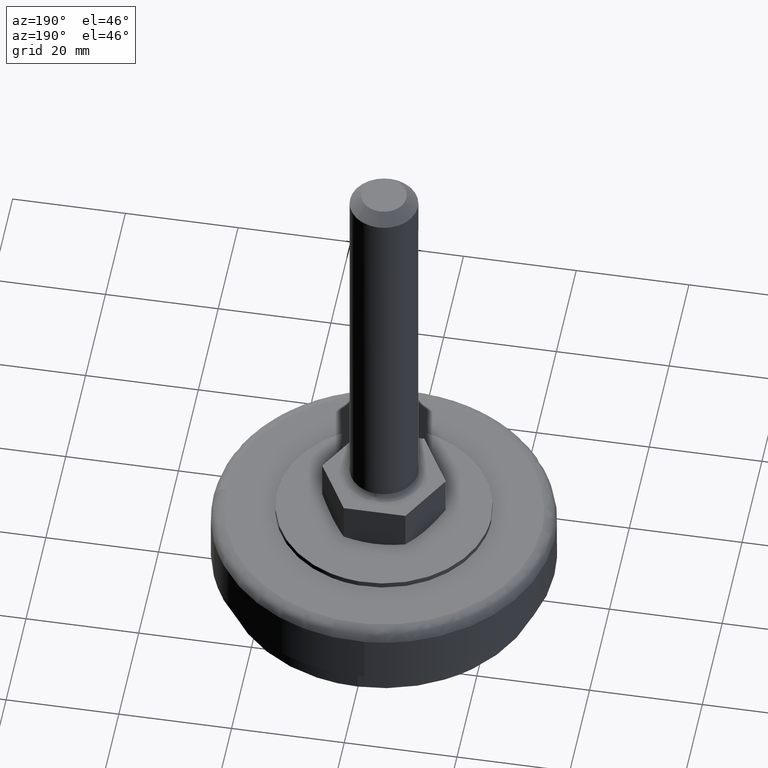
[diagram: clean part render]
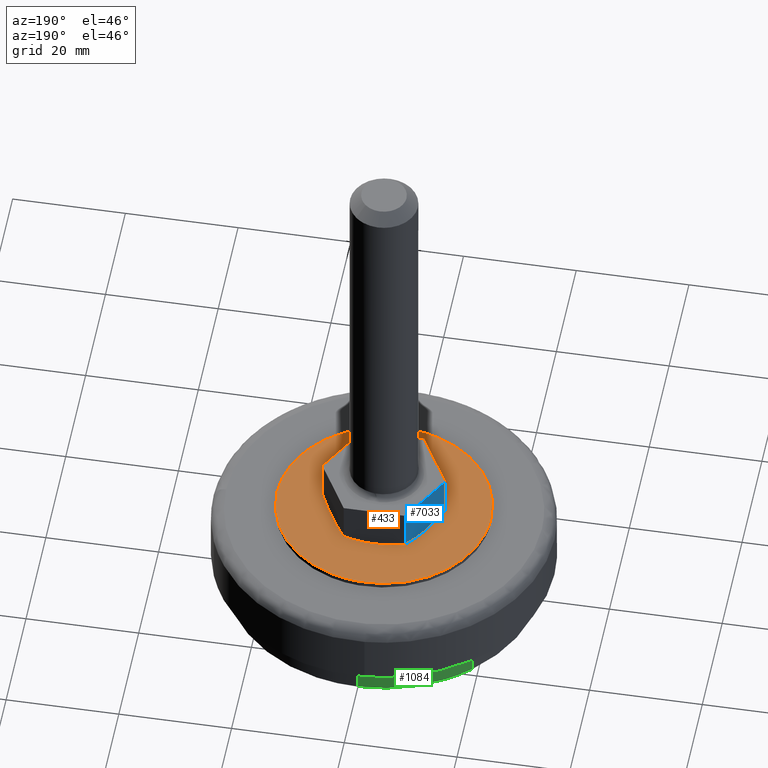
[diagram: same view with three faces highlighted in distinct colors, each labeled with its STEP entity id]
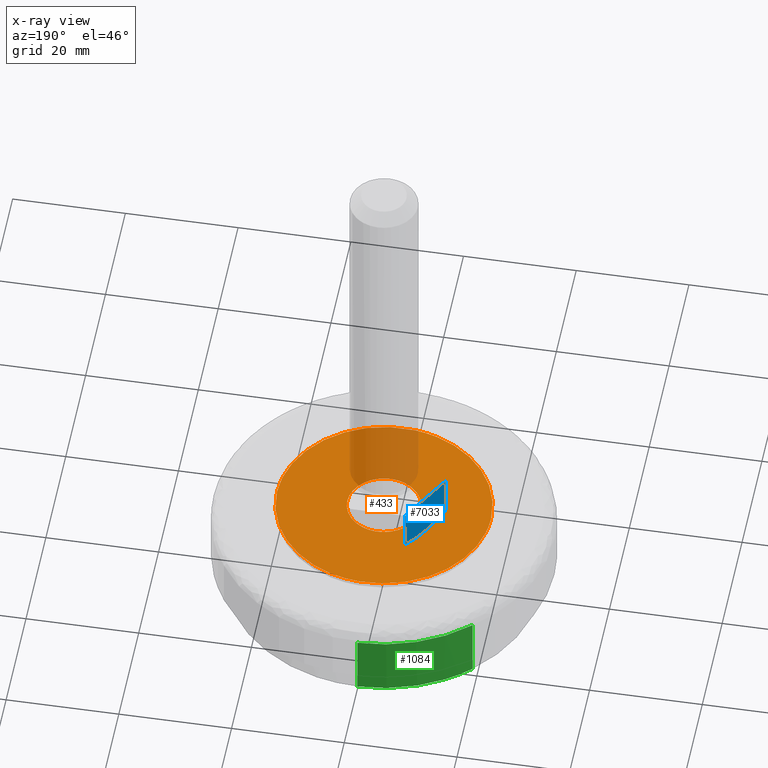
[diagram: x-ray of the same camera — body ghosted, the three highlighted faces saturated]
A machine part, auxiliary view with three faces highlighted in distinct colors.
The next image is the same camera in x-ray (body ghosted, the three faces saturated) — at least one of them is partly hidden behind the body in this view.
Their STEP definitions:

[orange] entity #433 — the highlighted face is a freeform B-spline surface patch.
#66=CARTESIAN_POINT('',(-2.242630320346628,-18.867183394610091,17.000000000002419));
#67=VERTEX_POINT('',#66);
#68=CARTESIAN_POINT('',(19.0,0.0,17.0));
#69=VERTEX_POINT('',#68);
#70=CARTESIAN_POINT('',(-2.242630320346628,-18.867183394610080,17.000000000002412));
#71=CARTESIAN_POINT('',(-1.125248097873134,-18.999999999999996,17.0));
#72=CARTESIAN_POINT('',(0.0,-19.0,17.0));
#73=CARTESIAN_POINT('',(18.999999999999993,-18.999999999999993,17.000000000000004));
#74=CARTESIAN_POINT('',(19.0,0.0,17.0));
#82=(BOUNDED_CURVE()B_SPLINE_CURVE(2,(#70,#71,#72,#73,#74),.UNSPECIFIED.,.F.,.U.)B_SPLINE_CURVE_WITH_KNOTS((3,2,3),(0.229562653903479,0.250000000000000,0.500000000000000),.UNSPECIFIED.)CURVE()GEOMETRIC_REPRESENTATION_ITEM()RATIONAL_B_SPLINE_CURVE((0.956027107755728,0.976056159671141,1.0,0.707106781186548,1.0))REPRESENTATION_ITEM(''));
#83=EDGE_CURVE('',#67,#69,#82,.T.);
#124=CARTESIAN_POINT('',(1.159897889885760,18.964562659983560,17.000000000002451));
#125=VERTEX_POINT('',#124);
#131=CARTESIAN_POINT('',(19.0,0.0,17.0));
#132=CARTESIAN_POINT('',(19.000000000000004,17.873438273749603,16.999999999999996));
#133=CARTESIAN_POINT('',(1.159897889885760,18.964562659983567,17.000000000002444));
#141=(BOUNDED_CURVE()B_SPLINE_CURVE(2,(#131,#132,#133),.UNSPECIFIED.,.F.,.U.)B_SPLINE_CURVE_WITH_KNOTS((3,3),(0.500000000000000,0.739333183890163),.UNSPECIFIED.)CURVE()GEOMETRIC_REPRESENTATION_ITEM()RATIONAL_B_SPLINE_CURVE((1.0,0.719603733606152,0.976072516707937))REPRESENTATION_ITEM(''));
#142=EDGE_CURVE('',#69,#125,#141,.T.);
#165=CARTESIAN_POINT('',(-19.0,0.0,17.0));
#166=VERTEX_POINT('',#165);
#167=CARTESIAN_POINT('',(-19.0,0.0,17.0));
#168=CARTESIAN_POINT('',(-19.0,-16.875334131970384,17.000000000000004));
#169=CARTESIAN_POINT('',(-2.242630320346628,-18.867183394610080,17.000000000002412));
#177=(BOUNDED_CURVE()B_SPLINE_CURVE(2,(#167,#168,#169),.UNSPECIFIED.,.F.,.U.)B_SPLINE_CURVE_WITH_KNOTS((3,3),(0.0,0.229562653903479),.UNSPECIFIED.)CURVE()GEOMETRIC_REPRESENTATION_ITEM()RATIONAL_B_SPLINE_CURVE((1.0,0.731050621515406,0.956027107755728))REPRESENTATION_ITEM(''));
#178=EDGE_CURVE('',#166,#67,#177,.T.);
#180=CARTESIAN_POINT('',(1.159897889885760,18.964562659983567,17.000000000002444));
#181=CARTESIAN_POINT('',(0.580490287882800,19.000000000000004,17.000000000000004));
#182=CARTESIAN_POINT('',(0.0,19.0,17.0));
#183=CARTESIAN_POINT('',(-18.999999999999993,18.999999999999993,17.000000000000004));
#184=CARTESIAN_POINT('',(-19.0,0.0,17.0));
#192=(BOUNDED_CURVE()B_SPLINE_CURVE(2,(#180,#181,#182,#183,#184),.UNSPECIFIED.,.F.,.U.)B_SPLINE_CURVE_WITH_KNOTS((3,2,3),(0.739333183890163,0.750000000000000,1.0),.UNSPECIFIED.)CURVE()GEOMETRIC_REPRESENTATION_ITEM()RATIONAL_B_SPLINE_CURVE((0.976072516707937,0.987503047580395,1.0,0.707106781186548,1.0))REPRESENTATION_ITEM(''));
#193=EDGE_CURVE('',#125,#166,#192,.T.);
#252=CARTESIAN_POINT('',(-0.767222525357073,-6.454561921353355,17.0));
#253=VERTEX_POINT('',#252);
#254=CARTESIAN_POINT('',(6.500000000000000,0.0,17.0));
#255=VERTEX_POINT('',#254);
#256=CARTESIAN_POINT('',(-0.767222525357073,-6.454561921353355,17.000000000000004));
#257=CARTESIAN_POINT('',(-0.384956777826491,-6.500000000000000,17.000000000000004));
#258=CARTESIAN_POINT('',(0.0,-6.500000000000000,17.0));
#259=CARTESIAN_POINT('',(6.500000000000000,-6.500000000000000,17.000000000000007));
#260=CARTESIAN_POINT('',(6.500000000000000,0.0,17.0));
#268=(BOUNDED_CURVE()B_SPLINE_CURVE(2,(#256,#257,#258,#259,#260),.UNSPECIFIED.,.F.,.U.)B_SPLINE_CURVE_WITH_KNOTS((3,2,3),(0.229562473511028,0.250000000000000,0.500000000000000),.UNSPECIFIED.)CURVE()GEOMETRIC_REPRESENTATION_ITEM()RATIONAL_B_SPLINE_CURVE((0.956026754178839,0.976055948328240,1.0,0.707106781186547,1.0))REPRESENTATION_ITEM(''));
#269=EDGE_CURVE('',#253,#255,#268,.T.);
#271=CARTESIAN_POINT('',(0.396815507118378,6.487876189733461,17.0));
#272=VERTEX_POINT('',#271);
#273=CARTESIAN_POINT('',(6.500000000000000,0.0,17.0));
#274=CARTESIAN_POINT('',(6.500000000000000,6.114589434619255,16.999999999999993));
#275=CARTESIAN_POINT('',(0.396815507118378,6.487876189733462,17.000000000000004));
#283=(BOUNDED_CURVE()B_SPLINE_CURVE(2,(#273,#274,#275),.UNSPECIFIED.,.F.,.U.)B_SPLINE_CURVE_WITH_KNOTS((3,3),(0.500000000000000,0.739332962234426),.UNSPECIFIED.)CURVE()GEOMETRIC_REPRESENTATION_ITEM()RATIONAL_B_SPLINE_CURVE((1.0,0.719603993292001,0.976072041657038))REPRESENTATION_ITEM(''));
#284=EDGE_CURVE('',#255,#272,#283,.T.);
#351=CARTESIAN_POINT('',(-6.500000000000000,0.0,17.0));
#352=VERTEX_POINT('',#351);
#353=CARTESIAN_POINT('',(-6.500000000000000,0.0,17.0));
#354=CARTESIAN_POINT('',(-6.500000000000000,-5.773134418525107,17.0));
#355=CARTESIAN_POINT('',(-0.767222525357073,-6.454561921353355,17.0));
#363=(BOUNDED_CURVE()B_SPLINE_CURVE(2,(#353,#354,#355),.UNSPECIFIED.,.F.,.U.)B_SPLINE_CURVE_WITH_KNOTS((3,3),(0.0,0.229562473511028),.UNSPECIFIED.)CURVE()GEOMETRIC_REPRESENTATION_ITEM()RATIONAL_B_SPLINE_CURVE((1.0,0.731050832858308,0.956026754178839))REPRESENTATION_ITEM(''));
#364=EDGE_CURVE('',#352,#253,#363,.T.);
#398=CARTESIAN_POINT('',(0.396815507118378,6.487876189733461,17.0));
#399=CARTESIAN_POINT('',(0.198592961583033,6.500000000000001,16.999999999999996));
#400=CARTESIAN_POINT('',(0.0,6.500000000000000,17.0));
#401=CARTESIAN_POINT('',(-6.500000000000000,6.500000000000000,17.000000000000007));
#402=CARTESIAN_POINT('',(-6.500000000000000,0.0,17.0));
#410=(BOUNDED_CURVE()B_SPLINE_CURVE(2,(#398,#399,#400,#401,#402),.UNSPECIFIED.,.F.,.U.)B_SPLINE_CURVE_WITH_KNOTS((3,2,3),(0.739332962234425,0.750000000000000,1.0),.UNSPECIFIED.)CURVE()GEOMETRIC_REPRESENTATION_ITEM()RATIONAL_B_SPLINE_CURVE((0.976072041657036,0.987502787894545,1.0,0.707106781186547,1.0))REPRESENTATION_ITEM(''));
#411=EDGE_CURVE('',#272,#352,#410,.T.);
#416=CARTESIAN_POINT('',(-20.898099926348628,20.897637839953571,17.0));
#417=CARTESIAN_POINT('',(20.898100945588052,20.897637839953571,17.0));
#418=CARTESIAN_POINT('',(-20.898099926348628,-20.897754372994569,17.0));
#419=CARTESIAN_POINT('',(20.898100945588052,-20.897754372994569,17.0));
#420=B_SPLINE_SURFACE_WITH_KNOTS('',1,1,((#416,#418),(#417,#419)),.UNSPECIFIED.,.F.,.F.,.U.,(2,2),(2,2),(0.0,41.796200871936684),(0.0,41.795392212948137),.UNSPECIFIED.);
#421=ORIENTED_EDGE('',*,*,#178,.T.);
#422=ORIENTED_EDGE('',*,*,#83,.T.);
#423=ORIENTED_EDGE('',*,*,#142,.T.);
#424=ORIENTED_EDGE('',*,*,#193,.T.);
#425=EDGE_LOOP('',(#421,#422,#423,#424));
#426=FACE_OUTER_BOUND('',#425,.T.);
#427=ORIENTED_EDGE('',*,*,#284,.F.);
#428=ORIENTED_EDGE('',*,*,#269,.F.);
#429=ORIENTED_EDGE('',*,*,#364,.F.);
#430=ORIENTED_EDGE('',*,*,#411,.F.);
#431=EDGE_LOOP('',(#427,#428,#429,#430));
#432=FACE_BOUND('',#431,.T.);
#433=ADVANCED_FACE('',(#426,#432),#420,.F.);

[blue] entity #7033 — the highlighted face is a freeform B-spline surface patch.
#6535=CARTESIAN_POINT('',(-5.465173000000000,9.500000000000000,17.846993181507699));
#6536=VERTEX_POINT('',#6535);
#6578=CARTESIAN_POINT('',(-7.996582075870800,5.115470420348260,17.0));
#6579=VERTEX_POINT('',#6578);
#6595=CARTESIAN_POINT('',(-7.996582075870800,5.115470420348260,17.0));
#6596=CARTESIAN_POINT('',(-7.836221384791168,5.393223313056907,17.008436066404919));
#6597=CARTESIAN_POINT('',(-7.675513002915276,5.671578423951190,17.026241100492371));
#6598=CARTESIAN_POINT('',(-7.456300319299470,6.051265968216516,17.063109888186499));
#6599=CARTESIAN_POINT('',(-7.398095784269287,6.152079190363126,17.074096049156271));
#6600=CARTESIAN_POINT('',(-7.281598495031726,6.353858434768976,17.098445548257281));
#6601=CARTESIAN_POINT('',(-7.223282726646384,6.454864318757799,17.111817631557390));
#6602=CARTESIAN_POINT('',(-7.049033318834879,6.756673176942254,17.155214979405478));
#6603=CARTESIAN_POINT('',(-6.933522783884041,6.956743312615267,17.188574015707580));
#6604=CARTESIAN_POINT('',(-6.358979859145182,7.951880950505964,17.375690732644269));
#6605=CARTESIAN_POINT('',(-5.908930126793140,8.731390032076703,17.590098430846890));
#6606=CARTESIAN_POINT('',(-5.465173000000000,9.500000000000000,17.846993181507699));
#6607=B_SPLINE_CURVE_WITH_KNOTS('',3,(#6595,#6596,#6597,#6598,#6599,#6600,#6601,#6602,#6603,#6604,#6605,#6606),.UNSPECIFIED.,.F.,.U.,(4,2,2,2,2,4),(0.538464315119283,0.624999999999999,0.656250000000000,0.687500000000000,0.750000000000000,1.0),.UNSPECIFIED.);
#6608=EDGE_CURVE('',#6579,#6536,#6607,.T.);
#6627=CARTESIAN_POINT('',(-10.949999999999999,-2.845313E-016,17.841311446569101));
#6628=VERTEX_POINT('',#6627);
#6629=CARTESIAN_POINT('',(-8.428418758583570,4.367507269318820,17.0));
#6630=VERTEX_POINT('',#6629);
#6631=CARTESIAN_POINT('',(-10.949999999999999,-2.845313E-016,17.841311446569101));
#6632=CARTESIAN_POINT('',(-10.838129373539180,0.193765628592811,17.776722303274319));
#6633=CARTESIAN_POINT('',(-10.725749906058731,0.388412595774138,17.714805743481520));
#6634=CARTESIAN_POINT('',(-10.499845500568931,0.779690543493013,17.596988973835291));
#6635=CARTESIAN_POINT('',(-10.386203313533819,0.976524605320944,17.541043530067022));
#6636=CARTESIAN_POINT('',(-10.045244480467881,1.567082687485886,17.384155050106930));
#6637=CARTESIAN_POINT('',(-9.817406623603791,1.961709471559261,17.293897273469280));
#6638=CARTESIAN_POINT('',(-9.360490526648718,2.753111446694166,17.146805388516121));
#6639=CARTESIAN_POINT('',(-9.131411102461478,3.149888688670759,17.090003187146170));
#6640=CARTESIAN_POINT('',(-8.744228473801712,3.820508741457802,17.025697125755670));
#6641=CARTESIAN_POINT('',(-8.586491881093403,4.093716562001449,17.008314455908870));
#6642=CARTESIAN_POINT('',(-8.428418758583570,4.367507269318820,17.0));
#6643=B_SPLINE_CURVE_WITH_KNOTS('',3,(#6631,#6632,#6633,#6634,#6635,#6636,#6637,#6638,#6639,#6640,#6641,#6642),.UNSPECIFIED.,.F.,.U.,(4,2,2,2,2,4),(0.0,0.062500000000000,0.125000000000000,0.250000000000000,0.375000000000000,0.460634897965589),.UNSPECIFIED.);
#6644=EDGE_CURVE('',#6628,#6630,#6643,.T.);
#6844=CARTESIAN_POINT('',(-5.465173000000000,9.500000000000000,25.0));
#6845=VERTEX_POINT('',#6844);
#6851=CARTESIAN_POINT('',(-10.949999999999999,0.0,25.0));
#6852=VERTEX_POINT('',#6851);
#6853=CARTESIAN_POINT('',(-5.465173000000000,9.500000000000000,25.0));
#6854=CARTESIAN_POINT('',(-10.949999999999999,0.0,25.0));
#6855=QUASI_UNIFORM_CURVE('',1,(#6853,#6854),.UNSPECIFIED.,.F.,.U.);
#6856=EDGE_CURVE('',#6845,#6852,#6855,.T.);
#6929=CARTESIAN_POINT('',(-7.996582075870800,5.115470420348260,17.0));
#6930=CARTESIAN_POINT('',(-8.428418758583570,4.367507269318820,17.0));
#6931=QUASI_UNIFORM_CURVE('',1,(#6929,#6930),.UNSPECIFIED.,.F.,.U.);
#6932=EDGE_CURVE('',#6579,#6630,#6931,.T.);
#7006=CARTESIAN_POINT('',(-10.949999999999999,0.0,25.0));
#7007=CARTESIAN_POINT('',(-10.949999999999999,-2.845313E-016,17.841311446569101));
#7008=QUASI_UNIFORM_CURVE('',1,(#7006,#7007),.UNSPECIFIED.,.F.,.U.);
#7009=EDGE_CURVE('',#6852,#6628,#7008,.T.);
#7016=CARTESIAN_POINT('',(-11.223967046531691,-0.474524892407967,16.600400015505549));
#7017=CARTESIAN_POINT('',(-5.191205757315594,9.974525232154427,16.600400015505549));
#7018=CARTESIAN_POINT('',(-11.223967046531691,-0.474524892407967,25.399600199071170));
#7019=CARTESIAN_POINT('',(-5.191205757315594,9.974525232154427,25.399600199071170));
#7020=B_SPLINE_SURFACE_WITH_KNOTS('',1,1,((#7016,#7018),(#7017,#7019)),.UNSPECIFIED.,.F.,.F.,.U.,(2,2),(2,2),(0.0,12.065523497896040),(0.0,8.799200183565617),.UNSPECIFIED.);
#7021=ORIENTED_EDGE('',*,*,#6644,.F.);
#7022=ORIENTED_EDGE('',*,*,#7009,.F.);
#7023=ORIENTED_EDGE('',*,*,#6856,.F.);
#7024=CARTESIAN_POINT('',(-5.465173000000000,9.500000000000000,25.0));
#7025=CARTESIAN_POINT('',(-5.465173000000000,9.500000000000000,17.846993181507699));
#7026=QUASI_UNIFORM_CURVE('',1,(#7024,#7025),.UNSPECIFIED.,.F.,.U.);
#7027=EDGE_CURVE('',#6845,#6536,#7026,.T.);
#7028=ORIENTED_EDGE('',*,*,#7027,.T.);
#7029=ORIENTED_EDGE('',*,*,#6608,.F.);
#7030=ORIENTED_EDGE('',*,*,#6932,.T.);
#7031=EDGE_LOOP('',(#7021,#7022,#7023,#7028,#7029,#7030));
#7032=FACE_OUTER_BOUND('',#7031,.T.);
#7033=ADVANCED_FACE('',(#7032),#7020,.F.);

[green] entity #1084 — the highlighted face is a freeform B-spline surface patch.
#906=CARTESIAN_POINT('',(-19.309898155932419,20.276287461158081,-1.451516E-014));
#907=VERTEX_POINT('',#906);
#940=CARTESIAN_POINT('',(-0.244315314502062,27.998934087324340,1.882106E-013));
#941=VERTEX_POINT('',#940);
#957=CARTESIAN_POINT('',(-0.244315684938147,27.998934084092330,11.0));
#958=VERTEX_POINT('',#957);
#959=CARTESIAN_POINT('',(-0.244315314502062,27.998934087324340,1.882106E-013));
#960=CARTESIAN_POINT('',(-0.244315684938147,27.998934084092330,11.0));
#961=QUASI_UNIFORM_CURVE('',1,(#959,#960),.UNSPECIFIED.,.F.,.U.);
#962=EDGE_CURVE('',#941,#958,#961,.T.);
#1013=CARTESIAN_POINT('',(-19.309897966577680,20.276287641487968,11.0));
#1014=VERTEX_POINT('',#1013);
#1028=CARTESIAN_POINT('',(-19.309898155932419,20.276287461158081,-1.451516E-014));
#1029=CARTESIAN_POINT('',(-19.309897966577680,20.276287641487968,11.0));
#1030=QUASI_UNIFORM_CURVE('',1,(#1028,#1029),.UNSPECIFIED.,.F.,.U.);
#1031=EDGE_CURVE('',#907,#1014,#1030,.T.);
#1036=CARTESIAN_POINT('',(-0.149417143388647,27.999762251144606,-0.275000000008583));
#1037=CARTESIAN_POINT('',(-0.196846718591899,27.999348339512434,-0.275000000008583));
#1038=CARTESIAN_POINT('',(-11.302091213400212,27.902434339022182,-0.275000000008583));
#1039=CARTESIAN_POINT('',(-19.350202619105346,20.237903948893660,-0.275000000008583));
#1040=CARTESIAN_POINT('',(-19.390509095065621,20.199518519773278,-0.275000000008583));
#1041=CARTESIAN_POINT('',(-0.149417143388647,27.999762251144606,11.281875000352111));
#1042=CARTESIAN_POINT('',(-0.196846718591899,27.999348339512434,11.281875000352112));
#1043=CARTESIAN_POINT('',(-11.302091213400212,27.902434339022182,11.281875000352107));
#1044=CARTESIAN_POINT('',(-19.350202619105346,20.237903948893660,11.281875000352105));
#1045=CARTESIAN_POINT('',(-19.390509095065621,20.199518519773278,11.281875000352105));
#1053=(BOUNDED_SURFACE()B_SPLINE_SURFACE(2,1,((#1036,#1041),(#1037,#1042),(#1038,#1043),(#1039,#1044),(#1040,#1045)),.UNSPECIFIED.,.F.,.F.,.U.)B_SPLINE_SURFACE_WITH_KNOTS((3,1,1,3),(2,2),(0.0,0.111357293840948,22.376300001008161,22.487623983053769),(0.0,11.556875000360691),.UNSPECIFIED.)GEOMETRIC_REPRESENTATION_ITEM()RATIONAL_B_SPLINE_SURFACE(((1.001406298897508,1.001406298897508),(1.000703149448754,1.000703149448754),(0.859411254969543,0.859411254969543),(0.853759587604074,0.853759587604074),(0.853731470039824,0.853731470039824)))REPRESENTATION_ITEM('')SURFACE());
#1054=CARTESIAN_POINT('',(-0.244315314502062,27.998934087324347,1.882106E-013));
#1055=CARTESIAN_POINT('',(-11.302078602877877,27.902445381480046,0.0));
#1056=CARTESIAN_POINT('',(-19.309898155932419,20.276287461158084,-1.451516E-014));
#1064=(BOUNDED_CURVE()B_SPLINE_CURVE(2,(#1054,#1055,#1056),.UNSPECIFIED.,.F.,.U.)B_SPLINE_CURVE_WITH_KNOTS((3,3),(0.751539720202049,0.871317014292788),.UNSPECIFIED.)CURVE()GEOMETRIC_REPRESENTATION_ITEM()RATIONAL_B_SPLINE_CURVE((0.996414431093097,0.857815127008738,0.853680523905556))REPRESENTATION_ITEM(''));
#1065=EDGE_CURVE('',#941,#907,#1064,.T.);
#1066=ORIENTED_EDGE('',*,*,#1065,.T.);
#1067=ORIENTED_EDGE('',*,*,#1031,.T.);
#1068=CARTESIAN_POINT('',(-19.309897966577701,20.276287641487986,10.999999999999998));
#1069=CARTESIAN_POINT('',(-11.302079119211767,27.902445230665208,11.0));
#1070=CARTESIAN_POINT('',(-0.244315684938147,27.998934084092326,11.000000000000002));
#1078=(BOUNDED_CURVE()B_SPLINE_CURVE(2,(#1068,#1069,#1070),.UNSPECIFIED.,.F.,.U.)B_SPLINE_CURVE_WITH_KNOTS((3,3),(0.128682982338168,0.248460277467517),.UNSPECIFIED.)CURVE()GEOMETRIC_REPRESENTATION_ITEM()RATIONAL_B_SPLINE_CURVE((0.853680523672964,0.857815123029831,0.996414425699812))REPRESENTATION_ITEM(''));
#1079=EDGE_CURVE('',#1014,#958,#1078,.T.);
#1080=ORIENTED_EDGE('',*,*,#1079,.T.);
#1081=ORIENTED_EDGE('',*,*,#962,.F.);
#1082=EDGE_LOOP('',(#1066,#1067,#1080,#1081));
#1083=FACE_OUTER_BOUND('',#1082,.T.);
#1084=ADVANCED_FACE('',(#1083),#1053,.T.);